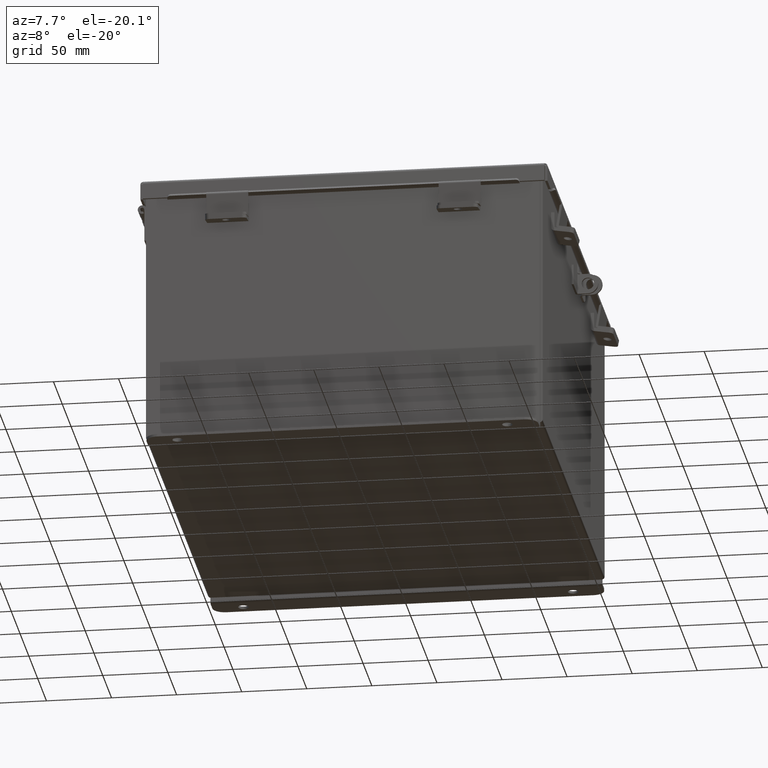
[diagram: clean part render]
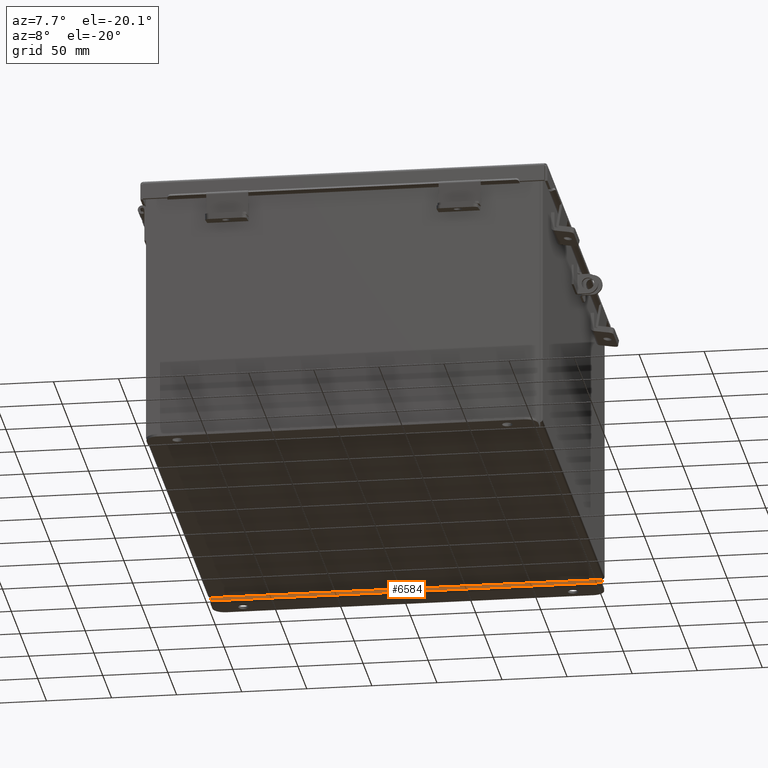
[diagram: same view with one face highlighted and labeled with its STEP entity id]
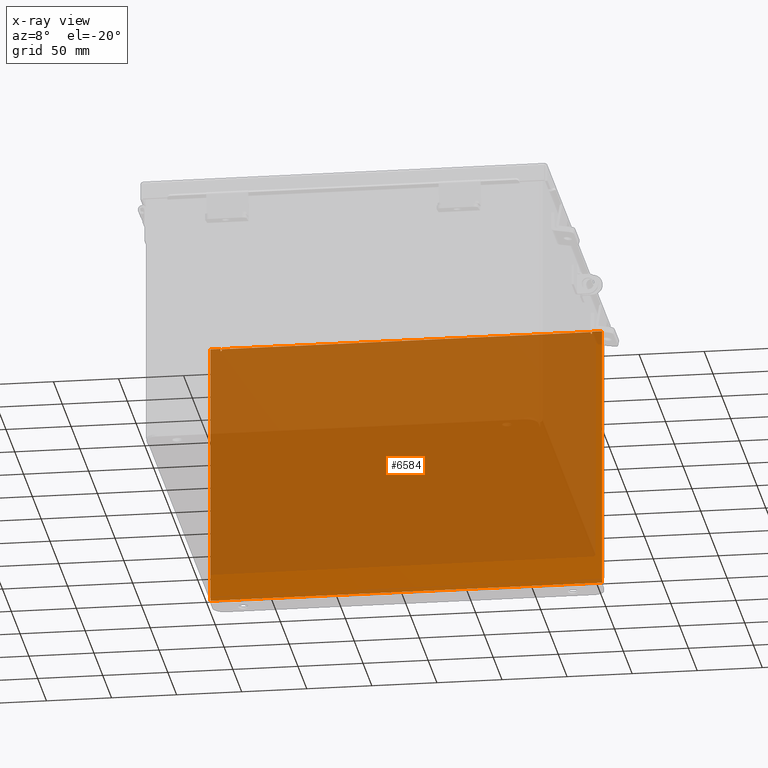
[diagram: x-ray of the same camera — body ghosted, the highlighted face saturated]
A machine part, auxiliary view. The second image highlights one B-rep face of the part: STEP entity #6584.
The next image is the same camera in x-ray: the body ghosted, the highlighted face saturated — about 88% of this face is hidden behind the body in this view.
In plain terms, the highlighted planar face has unit normal (0, -1, 0).
Its self-contained STEP definition (entity closure, byte-faithful):
#195 = ORIENTED_EDGE ( 'NONE', *, *, #947, .F. ) ;
#329 = DIRECTION ( 'NONE',  ( 2.170286390199955400E-014, -2.272018564740578300E-014, 1.000000000000000000 ) ) ;
#925 = VECTOR ( 'NONE', #7516, 39.37007874015748100 ) ;
#947 = EDGE_CURVE ( 'NONE', #18310, #4588, #6376, .T. ) ;
#1184 = DIRECTION ( 'NONE',  ( 0.0000000000000000000, 2.272018564740602900E-014, -1.000000000000000000 ) ) ;
#1532 = ORIENTED_EDGE ( 'NONE', *, *, #12220, .F. ) ;
#1783 = AXIS2_PLACEMENT_3D ( 'NONE', #9606, #15805, #5362 ) ;
#1812 = CARTESIAN_POINT ( 'NONE',  ( 5.925299999999999100, -0.07470000000000015500, 3.925299999999999600 ) ) ;
#2184 = DIRECTION ( 'NONE',  ( -0.0000000000000000000, -0.0000000000000000000, 1.000000000000000000 ) ) ;
#2526 = FACE_OUTER_BOUND ( 'NONE', #15916, .T. ) ;
#2579 = EDGE_CURVE ( 'NONE', #8111, #18307, #15158, .T. ) ;
#3021 = AXIS2_PLACEMENT_3D ( 'NONE', #17238, #13254, #6398 ) ;
#3389 = ORIENTED_EDGE ( 'NONE', *, *, #5716, .F. ) ;
#3652 = DIRECTION ( 'NONE',  ( 0.0000000000000000000, 0.0000000000000000000, -1.000000000000000000 ) ) ;
#3669 = DIRECTION ( 'NONE',  ( 0.0000000000000000000, -1.000000000000000000, 0.0000000000000000000 ) ) ;
#4100 = CARTESIAN_POINT ( 'NONE',  ( 5.619650000000000000, -0.07470000000000015500, 3.925299999999999600 ) ) ;
#4588 = VERTEX_POINT ( 'NONE', #7617 ) ;
#4593 = ORIENTED_EDGE ( 'NONE', *, *, #8101, .T. ) ;
#4769 = ORIENTED_EDGE ( 'NONE', *, *, #8907, .F. ) ;
#5161 = VECTOR ( 'NONE', #329, 39.37007874015748100 ) ;
#5299 = DIRECTION ( 'NONE',  ( 0.0000000000000000000, 0.0000000000000000000, -1.000000000000000000 ) ) ;
#5321 = LINE ( 'NONE', #11734, #925 ) ;
#5325 = CARTESIAN_POINT ( 'NONE',  ( -5.619650000000000000, -0.07469999999999907300, 3.925299999999999600 ) ) ;
#5362 = DIRECTION ( 'NONE',  ( 0.0000000000000000000, 0.0000000000000000000, -1.000000000000000000 ) ) ;
#5716 = EDGE_CURVE ( 'NONE', #15688, #17413, #12759, .T. ) ;
#6353 = CARTESIAN_POINT ( 'NONE',  ( 5.619649999999999100, -0.07470000000000015500, 3.874949999999998300 ) ) ;
#6376 = LINE ( 'NONE', #17783, #10152 ) ;
#6398 = DIRECTION ( 'NONE',  ( 0.0000000000000000000, -0.0000000000000000000, -1.000000000000000000 ) ) ;
#6437 = VERTEX_POINT ( 'NONE', #1812 ) ;
#6584 = ADVANCED_FACE ( 'NONE', ( #2526 ), #15079, .T. ) ;
#6629 = ORIENTED_EDGE ( 'NONE', *, *, #15240, .F. ) ;
#6635 = VERTEX_POINT ( 'NONE', #4100 ) ;
#7516 = DIRECTION ( 'NONE',  ( 0.0000000000000000000, 0.0000000000000000000, 1.000000000000000000 ) ) ;
#7617 = CARTESIAN_POINT ( 'NONE',  ( 5.582299999999999200, -0.07470000000000015500, 3.912299999999998800 ) ) ;
#7670 = CARTESIAN_POINT ( 'NONE',  ( 5.619649999999999100, -0.07469999999999797600, 3.874949999999998300 ) ) ;
#7718 = VERTEX_POINT ( 'NONE', #16157 ) ;
#7942 = LINE ( 'NONE', #15294, #11731 ) ;
#7986 = DIRECTION ( 'NONE',  ( 1.000000000000000000, 8.208677865577646300E-017, -0.0000000000000000000 ) ) ;
#8101 = EDGE_CURVE ( 'NONE', #13619, #8546, #9895, .T. ) ;
#8111 = VERTEX_POINT ( 'NONE', #18274 ) ;
#8397 = ORIENTED_EDGE ( 'NONE', *, *, #2579, .F. ) ;
#8546 = VERTEX_POINT ( 'NONE', #12950 ) ;
#8724 = EDGE_CURVE ( 'NONE', #7718, #15688, #18642, .T. ) ;
#8907 = EDGE_CURVE ( 'NONE', #18307, #6635, #16770, .T. ) ;
#9606 = CARTESIAN_POINT ( 'NONE',  ( 5.600974999999998300, -0.07469999999999797600, 3.874949999999998300 ) ) ;
#9635 = CARTESIAN_POINT ( 'NONE',  ( 5.582299999999999200, -0.07469999999999797600, 3.912299999999998800 ) ) ;
#9895 = LINE ( 'NONE', #18218, #16793 ) ;
#10152 = VECTOR ( 'NONE', #16637, 39.37007874015748100 ) ;
#10154 = ORIENTED_EDGE ( 'NONE', *, *, #18378, .F. ) ;
#10327 = VECTOR ( 'NONE', #16199, 39.37007874015748100 ) ;
#10876 = CARTESIAN_POINT ( 'NONE',  ( -5.925300000000001800, -0.07470000000000015500, 3.925299999999999600 ) ) ;
#10934 = AXIS2_PLACEMENT_3D ( 'NONE', #12331, #3669, #13811 ) ;
#10945 = LINE ( 'NONE', #9635, #14397 ) ;
#11259 = EDGE_CURVE ( 'NONE', #17413, #13421, #14171, .T. ) ;
#11266 = EDGE_CURVE ( 'NONE', #13619, #7718, #14624, .T. ) ;
#11731 = VECTOR ( 'NONE', #3652, 39.37007874015748100 ) ;
#11734 = CARTESIAN_POINT ( 'NONE',  ( -5.582300000000000000, -0.07469999999999797600, 3.874949999999998300 ) ) ;
#11763 = CARTESIAN_POINT ( 'NONE',  ( -5.925300000000001800, -0.07470000000000015500, 3.925299999999999600 ) ) ;
#12220 = EDGE_CURVE ( 'NONE', #13421, #18310, #5321, .T. ) ;
#12331 = CARTESIAN_POINT ( 'NONE',  ( -5.600975000000000000, -0.07469999999999797600, 3.874949999999998300 ) ) ;
#12535 = CARTESIAN_POINT ( 'NONE',  ( -5.619650000000000000, -0.07470000000000015500, 3.874949999999998300 ) ) ;
#12577 = EDGE_CURVE ( 'NONE', #4588, #8111, #10945, .T. ) ;
#12740 = CARTESIAN_POINT ( 'NONE',  ( -5.619650000000000000, -0.07470000000000015500, 3.925299999999999600 ) ) ;
#12759 = LINE ( 'NONE', #5325, #15781 ) ;
#12950 = CARTESIAN_POINT ( 'NONE',  ( 5.925299999999999100, -0.07470000000000015500, -4.099300000000000400 ) ) ;
#13229 = DIRECTION ( 'NONE',  ( 1.000000000000000000, 0.0000000000000000000, 4.610480471308225700E-017 ) ) ;
#13254 = DIRECTION ( 'NONE',  ( 0.0000000000000000000, -1.000000000000000000, 0.0000000000000000000 ) ) ;
#13421 = VERTEX_POINT ( 'NONE', #14583 ) ;
#13593 = CARTESIAN_POINT ( 'NONE',  ( -5.582300000000000000, -0.07470000000000015500, 3.912299999999998800 ) ) ;
#13619 = VERTEX_POINT ( 'NONE', #16644 ) ;
#13811 = DIRECTION ( 'NONE',  ( 0.0000000000000000000, 0.0000000000000000000, -1.000000000000000000 ) ) ;
#14171 = CIRCLE ( 'NONE', #10934, 0.01867500000000003900 ) ;
#14306 = ORIENTED_EDGE ( 'NONE', *, *, #12577, .F. ) ;
#14397 = VECTOR ( 'NONE', #5299, 39.37007874015748100 ) ;
#14583 = CARTESIAN_POINT ( 'NONE',  ( -5.582300000000000000, -0.07470000000000015500, 3.874949999999998300 ) ) ;
#14604 = LINE ( 'NONE', #11763, #15072 ) ;
#14624 = LINE ( 'NONE', #10876, #17657 ) ;
#14690 = CARTESIAN_POINT ( 'NONE',  ( -5.925300000000001800, -0.07470000000000015500, 3.925299999999999600 ) ) ;
#15054 = ORIENTED_EDGE ( 'NONE', *, *, #11266, .F. ) ;
#15072 = VECTOR ( 'NONE', #13229, 39.37007874015748100 ) ;
#15079 = PLANE ( 'NONE',  #3021 ) ;
#15158 = CIRCLE ( 'NONE', #1783, 0.01867500000000003900 ) ;
#15240 = EDGE_CURVE ( 'NONE', #6635, #6437, #14604, .T. ) ;
#15294 = CARTESIAN_POINT ( 'NONE',  ( 5.925299999999999100, -0.07470000000000015500, 3.925299999999999600 ) ) ;
#15688 = VERTEX_POINT ( 'NONE', #12740 ) ;
#15781 = VECTOR ( 'NONE', #1184, 39.37007874015748100 ) ;
#15805 = DIRECTION ( 'NONE',  ( 0.0000000000000000000, -1.000000000000000000, 0.0000000000000000000 ) ) ;
#15916 = EDGE_LOOP ( 'NONE', ( #16912, #3389, #17677, #15054, #4593, #10154, #6629, #4769, #8397, #14306, #195, #1532 ) ) ;
#16157 = CARTESIAN_POINT ( 'NONE',  ( -5.925300000000001800, -0.07470000000000015500, 3.925299999999999600 ) ) ;
#16199 = DIRECTION ( 'NONE',  ( 1.000000000000000000, 0.0000000000000000000, 4.610480471308225700E-017 ) ) ;
#16637 = DIRECTION ( 'NONE',  ( 1.000000000000000000, 0.0000000000000000000, 0.0000000000000000000 ) ) ;
#16644 = CARTESIAN_POINT ( 'NONE',  ( -5.925300000000000000, -0.07470000000000125200, -4.099300000000000400 ) ) ;
#16770 = LINE ( 'NONE', #7670, #5161 ) ;
#16793 = VECTOR ( 'NONE', #7986, 39.37007874015748100 ) ;
#16912 = ORIENTED_EDGE ( 'NONE', *, *, #11259, .F. ) ;
#17238 = CARTESIAN_POINT ( 'NONE',  ( 0.0000000000000000000, -0.07470000000000015500, 0.0000000000000000000 ) ) ;
#17413 = VERTEX_POINT ( 'NONE', #12535 ) ;
#17657 = VECTOR ( 'NONE', #2184, 39.37007874015748100 ) ;
#17677 = ORIENTED_EDGE ( 'NONE', *, *, #8724, .F. ) ;
#17783 = CARTESIAN_POINT ( 'NONE',  ( -5.582300000000000900, -0.07469999999999797600, 3.912299999999998800 ) ) ;
#18218 = CARTESIAN_POINT ( 'NONE',  ( -5.925300000000001800, -0.07470000000000125200, -4.099300000000000400 ) ) ;
#18274 = CARTESIAN_POINT ( 'NONE',  ( 5.582299999999999200, -0.07470000000000015500, 3.874949999999998300 ) ) ;
#18307 = VERTEX_POINT ( 'NONE', #6353 ) ;
#18310 = VERTEX_POINT ( 'NONE', #13593 ) ;
#18378 = EDGE_CURVE ( 'NONE', #6437, #8546, #7942, .T. ) ;
#18642 = LINE ( 'NONE', #14690, #10327 ) ;